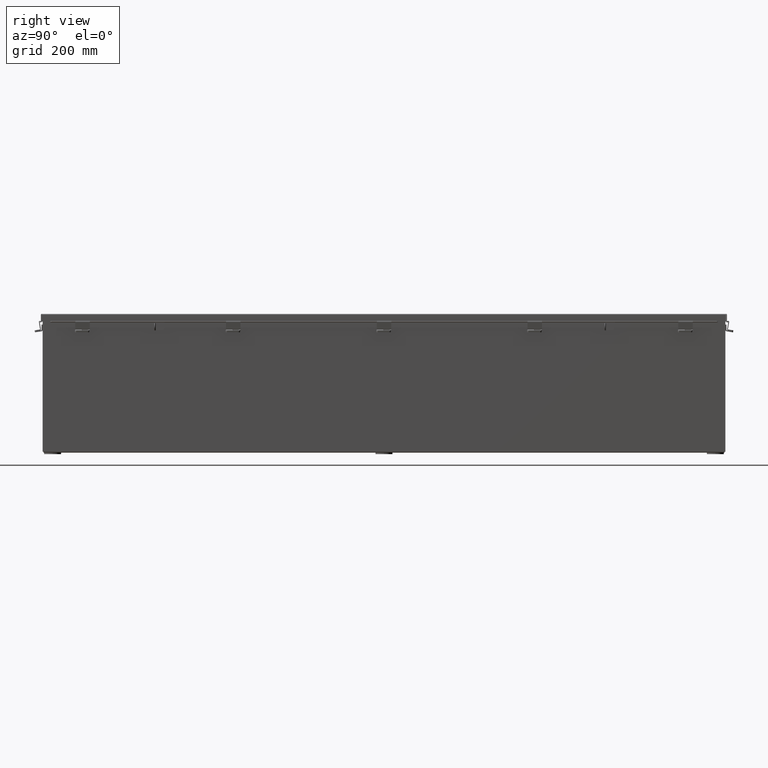
[diagram: clean part render]
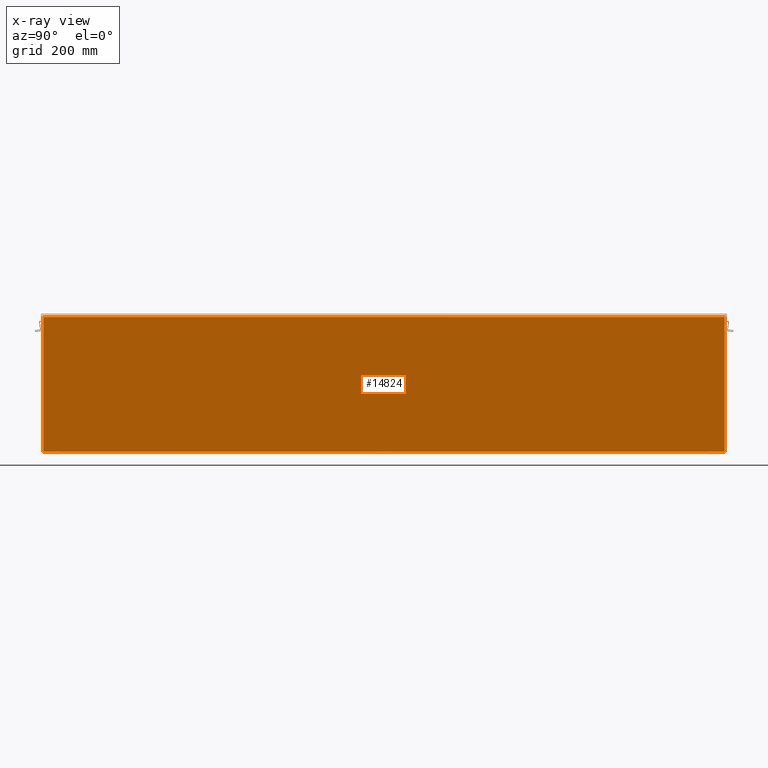
[diagram: x-ray — body ghosted, one internal face saturated and labeled with its STEP entity id]
A machine part, right view, then the same camera in x-ray: the body is ghosted and one INTERNAL B-rep face — a face not visible from any outside direction — is saturated and labeled: STEP entity #14824.
In plain terms, the highlighted planar face has unit normal (-1, 0, 0).
Its self-contained STEP definition (entity closure, byte-faithful):
#766 = LINE ( 'NONE', #2699, #25605 ) ;
#1630 = LINE ( 'NONE', #3666, #9573 ) ;
#1863 = EDGE_CURVE ( 'NONE', #10278, #8697, #5373, .T. ) ;
#2699 = CARTESIAN_POINT ( 'NONE',  ( 5.925299999999999100, -29.92529999999998900, 0.0000000000000000000 ) ) ;
#3666 = CARTESIAN_POINT ( 'NONE',  ( 5.925300000000040900, 29.92530000000001100, 11.85060000000000000 ) ) ;
#4954 = CARTESIAN_POINT ( 'NONE',  ( 5.925299999999999100, -29.92529999999998900, 0.01300000000000011600 ) ) ;
#5373 = LINE ( 'NONE', #4954, #39153 ) ;
#7051 = DIRECTION ( 'NONE',  ( 3.503965158194252100E-015, -3.688384377046581100E-016, 1.000000000000000000 ) ) ;
#8271 = CARTESIAN_POINT ( 'NONE',  ( 5.925299999999999100, 29.92530000000001800, 0.01300000000000011600 ) ) ;
#8549 = VECTOR ( 'NONE', #36450, 39.37007874015748100 ) ;
#8697 = VERTEX_POINT ( 'NONE', #8271 ) ;
#9573 = VECTOR ( 'NONE', #7051, 39.37007874015748100 ) ;
#9905 = ORIENTED_EDGE ( 'NONE', *, *, #32079, .F. ) ;
#10278 = VERTEX_POINT ( 'NONE', #40849 ) ;
#12587 = PLANE ( 'NONE',  #20913 ) ;
#14824 = ADVANCED_FACE ( 'NONE', ( #35221 ), #12587, .T. ) ;
#15941 = DIRECTION ( 'NONE',  ( 3.503965158194251300E-015, 0.0000000000000000000, 1.000000000000000000 ) ) ;
#19641 = LINE ( 'NONE', #39826, #8549 ) ;
#20913 = AXIS2_PLACEMENT_3D ( 'NONE', #22633, #36186, #15941 ) ;
#21010 = EDGE_CURVE ( 'NONE', #21571, #22048, #19641, .T. ) ;
#21571 = VERTEX_POINT ( 'NONE', #42871 ) ;
#22048 = VERTEX_POINT ( 'NONE', #28849 ) ;
#22633 = CARTESIAN_POINT ( 'NONE',  ( 5.925299999999999100, 0.0000000000000000000, -2.102669252623462500E-014 ) ) ;
#24186 = ORIENTED_EDGE ( 'NONE', *, *, #1863, .F. ) ;
#25605 = VECTOR ( 'NONE', #39867, 39.37007874015748100 ) ;
#28849 = CARTESIAN_POINT ( 'NONE',  ( 5.925300000000040000, -29.92529999999998900, 11.83760000000000000 ) ) ;
#32079 = EDGE_CURVE ( 'NONE', #8697, #21571, #1630, .T. ) ;
#35221 = FACE_OUTER_BOUND ( 'NONE', #41011, .T. ) ;
#36186 = DIRECTION ( 'NONE',  ( -1.000000000000000000, 0.0000000000000000000, 3.503965158194251300E-015 ) ) ;
#36450 = DIRECTION ( 'NONE',  ( -0.0000000000000000000, -1.000000000000000000, -0.0000000000000000000 ) ) ;
#38031 = EDGE_CURVE ( 'NONE', #22048, #10278, #766, .T. ) ;
#38297 = ORIENTED_EDGE ( 'NONE', *, *, #38031, .F. ) ;
#39153 = VECTOR ( 'NONE', #42142, 39.37007874015748100 ) ;
#39826 = CARTESIAN_POINT ( 'NONE',  ( 5.925300000000040000, 29.92530000000001800, 11.83760000000000000 ) ) ;
#39867 = DIRECTION ( 'NONE',  ( -3.503965158194252100E-015, -0.0000000000000000000, -1.000000000000000000 ) ) ;
#39955 = ORIENTED_EDGE ( 'NONE', *, *, #21010, .F. ) ;
#40849 = CARTESIAN_POINT ( 'NONE',  ( 5.925299999999999100, -29.92529999999998600, 0.01300000000000011600 ) ) ;
#41011 = EDGE_LOOP ( 'NONE', ( #38297, #39955, #9905, #24186 ) ) ;
#42142 = DIRECTION ( 'NONE',  ( 0.0000000000000000000, 1.000000000000000000, 0.0000000000000000000 ) ) ;
#42871 = CARTESIAN_POINT ( 'NONE',  ( 5.925300000000040900, 29.92530000000001100, 11.83760000000000000 ) ) ;